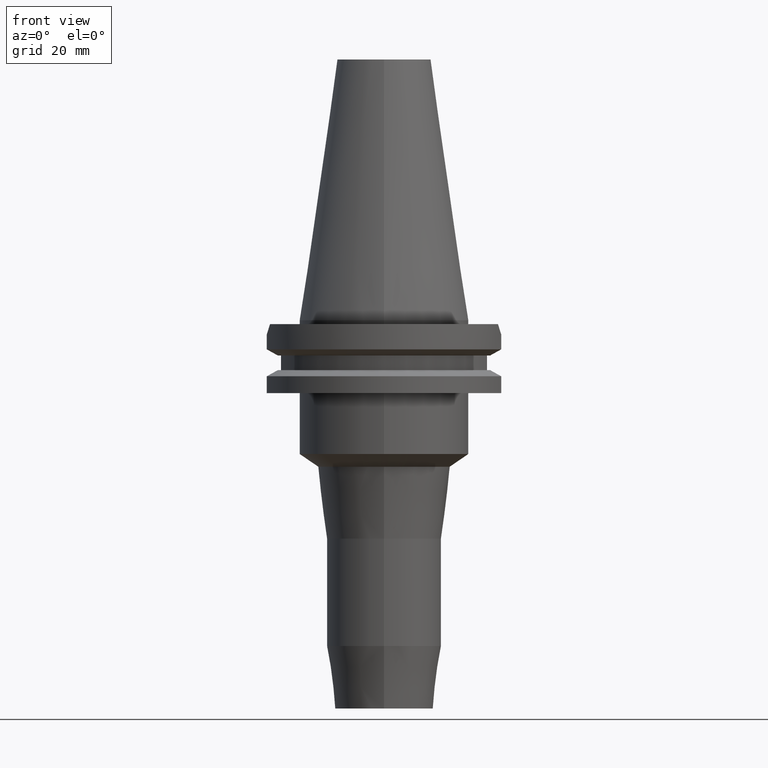
[diagram: clean part render]
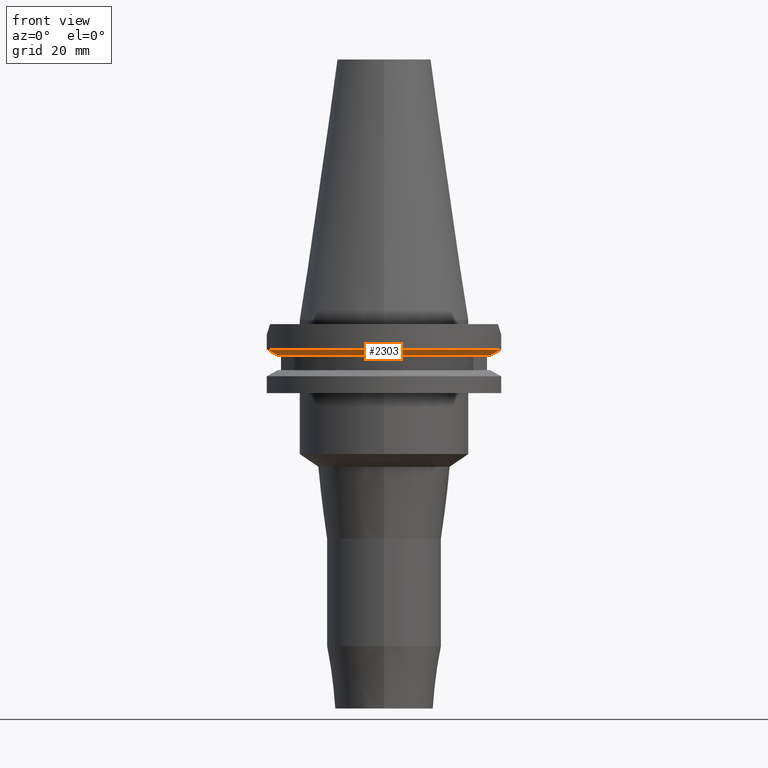
[diagram: same view with one face highlighted and labeled with its STEP entity id]
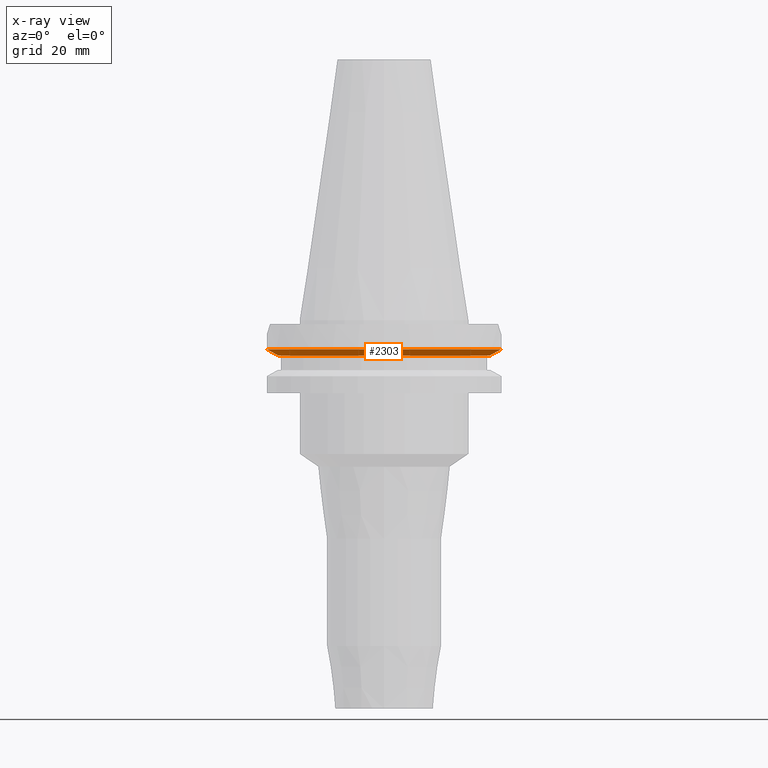
[diagram: x-ray of the same camera — body ghosted, the highlighted face saturated]
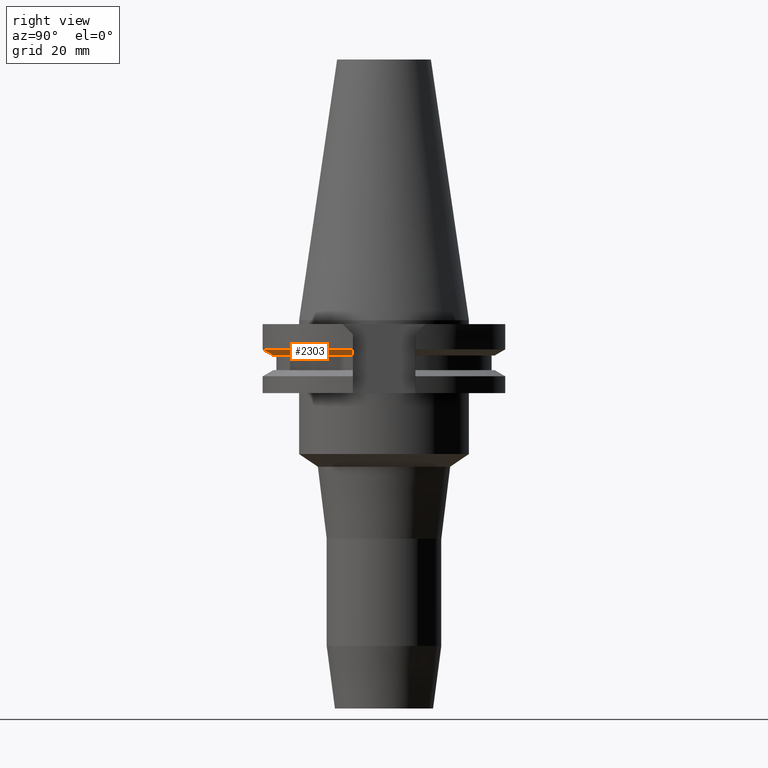
[diagram: same view with one face highlighted and labeled with its STEP entity id]
A machine part, front view. The second image highlights one B-rep face of the part: STEP entity #2303.
The next image is the same camera in x-ray: the body ghosted, the highlighted face saturated — about 0% of this face is hidden behind the body in this view.
A second angle (right view) of the same face is appended — the face is thin or edge-on in the first view.
In plain terms, the highlighted conical surface has half-angle 60 deg.
Its self-contained STEP definition (entity closure, byte-faithful):
#638=CARTESIAN_POINT('',(2.778616453850E1,-8.190000190920E0,-9.207500000001E0));
#639=CARTESIAN_POINT('',(2.810749132278E1,-8.190000190920E0,-9.029550869185E0));
#640=CARTESIAN_POINT('',(2.874991655705E1,-8.189999991758E0,-8.673260600819E0));
#641=CARTESIAN_POINT('',(2.971304241111E1,-8.189999742466E0,-8.137892857314E0));
#642=CARTESIAN_POINT('',(3.035472199995E1,-8.190000606407E0,-7.780262222225E0));
#643=CARTESIAN_POINT('',(3.067550146399E1,-8.190000606407E0,-7.601327811715E0));
#676=CARTESIAN_POINT('',(-3.067550165946E1,-8.189999874276E0,
-7.601334354445E0));
#677=CARTESIAN_POINT('',(-3.035472638233E1,-8.189999874276E0,
-7.780266432872E0));
#678=CARTESIAN_POINT('',(-2.971302863466E1,-8.189999973375E0,
-8.137871223015E0));
#679=CARTESIAN_POINT('',(-2.874990664155E1,-8.190000281772E0,
-8.673237294194E0));
#680=CARTESIAN_POINT('',(-2.810748974259E1,-8.189999360282E0,
-9.029558666210E0));
#681=CARTESIAN_POINT('',(-2.778617704607E1,-8.189999360282E0,
-9.207500000001E0));
#942=CARTESIAN_POINT('',(0.E0,1.121722380079E-14,-7.601333230926E0));
#943=DIRECTION('',(0.E0,0.E0,1.E0));
#944=DIRECTION('',(-9.661575315241E-1,-2.579527559055E-1,0.E0));
#945=AXIS2_PLACEMENT_3D('',#942,#943,#944);
#950=CARTESIAN_POINT('',(0.E0,1.121722380079E-14,-7.601333230926E0));
#951=DIRECTION('',(0.E0,0.E0,1.E0));
#952=DIRECTION('',(0.E0,-1.E0,0.E0));
#953=AXIS2_PLACEMENT_3D('',#950,#951,#952);
#981=CARTESIAN_POINT('',(0.E0,1.121722380079E-14,-9.207500000003E0));
#982=DIRECTION('',(0.E0,0.E0,1.E0));
#983=DIRECTION('',(-9.592008904640E-1,-2.827253998727E-1,0.E0));
#984=AXIS2_PLACEMENT_3D('',#981,#982,#983);
#989=CARTESIAN_POINT('',(0.E0,1.121722380079E-14,-9.207500000003E0));
#990=DIRECTION('',(0.E0,0.E0,1.E0));
#991=DIRECTION('',(0.E0,-1.E0,0.E0));
#992=AXIS2_PLACEMENT_3D('',#989,#990,#991);
#1407=CARTESIAN_POINT('',(2.778616453850E1,-8.190000190920E0,
-9.207500000001E0));
#1408=VERTEX_POINT('',#1407);
#1409=VERTEX_POINT('',#643);
#1426=CARTESIAN_POINT('',(-3.067550165946E1,-8.189999874276E0,
-7.601334354445E0));
#1427=VERTEX_POINT('',#1426);
#1428=VERTEX_POINT('',#681);
#1472=CARTESIAN_POINT('',(-3.537899182731E-14,-2.896803755053E1,
-9.207500000003E0));
#1473=VERTEX_POINT('',#1472);
#1478=CARTESIAN_POINT('',(0.E0,-3.175E1,-7.601333230926E0));
#1479=VERTEX_POINT('',#1478);
#2288=CARTESIAN_POINT('',(0.E0,1.121722380079E-14,-8.404416615464E0));
#2289=DIRECTION('',(0.E0,0.E0,1.E0));
#2290=DIRECTION('',(0.E0,1.E0,0.E0));
#2291=AXIS2_PLACEMENT_3D('',#2288,#2289,#2290);
#2292=CONICAL_SURFACE('',#2291,3.035901877527E1,6.E1);
#2293=ORIENTED_EDGE('',*,*,#2047,.F.);
#2295=ORIENTED_EDGE('',*,*,#2294,.F.);
#2297=ORIENTED_EDGE('',*,*,#2296,.F.);
#2298=ORIENTED_EDGE('',*,*,#2086,.F.);
#2299=ORIENTED_EDGE('',*,*,#2278,.T.);
#2300=ORIENTED_EDGE('',*,*,#2276,.T.);
#2301=EDGE_LOOP('',(#2293,#2295,#2297,#2298,#2299,#2300));
#2302=FACE_OUTER_BOUND('',#2301,.F.);
#644=B_SPLINE_CURVE_WITH_KNOTS('',3,(#638,#639,#640,#641,#642,#643),
.UNSPECIFIED.,.F.,.F.,(4,1,1,4),(0.E0,3.333333333333E-1,6.666666666667E-1,1.E0),
.UNSPECIFIED.);
#682=B_SPLINE_CURVE_WITH_KNOTS('',3,(#676,#677,#678,#679,#680,#681),
.UNSPECIFIED.,.F.,.F.,(4,1,1,4),(0.E0,3.333333333333E-1,6.666666666667E-1,1.E0),
.UNSPECIFIED.);
#946=CIRCLE('',#945,3.175E1);
#954=CIRCLE('',#953,3.175E1);
#985=CIRCLE('',#984,2.896803755053E1);
#993=CIRCLE('',#992,2.896803755053E1);
#2047=EDGE_CURVE('',#1408,#1409,#644,.T.);
#2086=EDGE_CURVE('',#1427,#1428,#682,.T.);
#2276=EDGE_CURVE('',#1479,#1409,#954,.T.);
#2278=EDGE_CURVE('',#1427,#1479,#946,.T.);
#2294=EDGE_CURVE('',#1473,#1408,#993,.T.);
#2296=EDGE_CURVE('',#1428,#1473,#985,.T.);
#2303=ADVANCED_FACE('',(#2302),#2292,.T.);